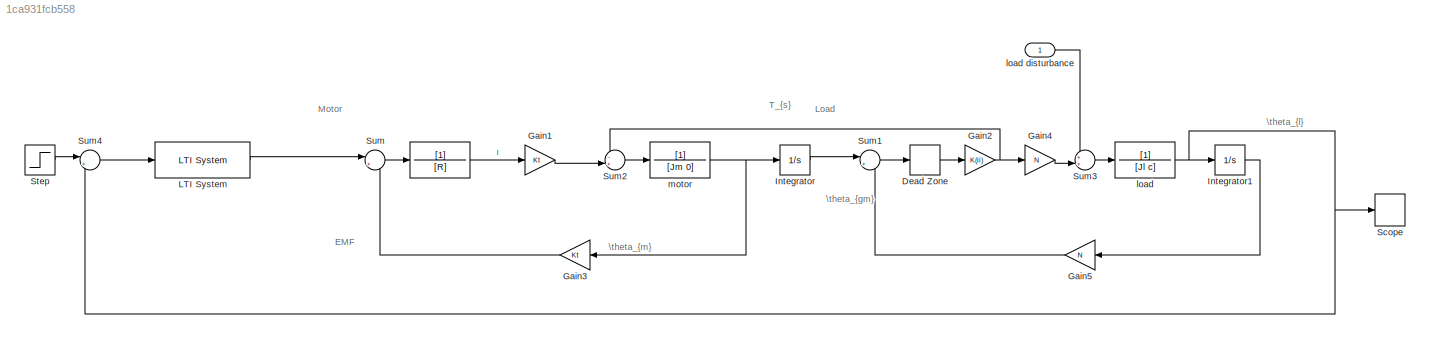
MODEL slx_1ca931fcb558
KIND model
CONFIG AbsTol = 1e-8
CONFIG FixedStep = auto
CONFIG MaxStep = auto
CONFIG MinStep = auto
CONFIG RelTol = 1e-8
CONFIG SampleTimeConstraint = Unconstrained
CONFIG Solver = ode45
CONFIG SolverMode = Auto
CONFIG SolverName = ode45
CONFIG StartTime = 0.0
CONFIG StopTime = 35
BLOCK [TransferFcn]  
  Denominator = [R]
BLOCK [TransferFcn]  load
  Denominator = [Jl c]
BLOCK [TransferFcn]  motor
  Denominator = [Jm 0]
BLOCK [DeadZone] Dead Zone
  LowerValue = -d/2
  UpperValue = d/2
BLOCK [Gain] Gain1
  Gain = Kt
  OutDataTypeStr = Inherit: Inherit via internal rule
  ParamDataTypeStr = Inherit: Inherit via internal rule
  SaturateOnIntegerOverflow = off
BLOCK [Gain] Gain2
  Gain = K(ii)
  OutDataTypeStr = Inherit: Inherit via internal rule
  ParamDataTypeStr = Inherit: Inherit via internal rule
  SaturateOnIntegerOverflow = off
BLOCK [Gain] Gain3
  Gain = Kt
  OutDataTypeStr = Inherit: Inherit via internal rule
  ParamDataTypeStr = Inherit: Inherit via internal rule
  SaturateOnIntegerOverflow = off
BLOCK [Gain] Gain4
  Gain = N
  OutDataTypeStr = Inherit: Inherit via internal rule
  ParamDataTypeStr = Inherit: Inherit via internal rule
  SaturateOnIntegerOverflow = off
BLOCK [Gain] Gain5
  Gain = N
  OutDataTypeStr = Inherit: Inherit via internal rule
  ParamDataTypeStr = Inherit: Inherit via internal rule
  SaturateOnIntegerOverflow = off
BLOCK [Integrator] Integrator
  Ports = [1, 1]
BLOCK [Integrator] Integrator1
  Ports = [1, 1]
BLOCK [Reference] LTI System  REF=cstblocks/LTI System
  IC = []
  Ports = [1, 1]
  SourceBlock = cstblocks/LTI System
  SourceType = LTI Block
  sys = C
BLOCK [TimeScope] Scope
  NumInputPorts = 1
  Ports = [1]
  ScopeSpecificationString = Simulink.scopes.TimeScopeBlockCfg('CurrentConfiguration', extmgr.ConfigurationSet(extmgr.Configuration('Core','General UI',true),extmgr.Configuration('Core','Source UI',true),extmgr.Configuration('Sources','WiredSimulink',true,'DataLogging',true,'DataLoggingVariableName','Output','DataLoggingDecimation','1','DataLoggingDecimateData',true,'DataLoggingSaveFormat','StructureWithTime'),extmgr.Configur...<+1632ch>
BLOCK [Step] Step
  After = pi/2
  SampleTime = 0
  Time = 0
BLOCK [Sum] Sum
  IconShape = round
  InputSameDT = off
  Inputs = |+-
  OutDataTypeStr = Inherit: Inherit via internal rule
  Ports = [2, 1]
  SaturateOnIntegerOverflow = off
BLOCK [Sum] Sum1
  IconShape = round
  InputSameDT = off
  Inputs = |+-
  OutDataTypeStr = Inherit: Inherit via internal rule
  Ports = [2, 1]
  SaturateOnIntegerOverflow = off
BLOCK [Sum] Sum2
  IconShape = round
  InputSameDT = off
  Inputs = -+|
  OutDataTypeStr = Inherit: Inherit via internal rule
  Ports = [2, 1]
  SaturateOnIntegerOverflow = off
BLOCK [Sum] Sum3
  IconShape = round
  InputSameDT = off
  Inputs = ++|
  OutDataTypeStr = Inherit: Inherit via internal rule
  Ports = [2, 1]
  SaturateOnIntegerOverflow = off
BLOCK [Sum] Sum4
  IconShape = round
  InputSameDT = off
  Inputs = |+-
  OutDataTypeStr = Inherit: Inherit via internal rule
  Ports = [2, 1]
  SaturateOnIntegerOverflow = off
BLOCK [Inport] load disturbance
  IconDisplay = Port number
ANNOTATION (root): EMF
ANNOTATION (root): Load
ANNOTATION (root): Motor
ANNOTATION (root): T_{s}
ANNOTATION (root): \theta_{gm}
ANNOTATION (root): \theta_{l}
ANNOTATION (root): \theta_{m}
LINE  :1 -> Gain1:1
NET  load:1 -> Integrator1:1, Scope:1, Sum4:2
NET  motor:1 -> Gain3:1, Integrator:1
LINE Dead Zone:1 -> Gain2:1
LINE Gain1:1 -> Sum2:2
NET Gain2:1 -> Gain4:1, Sum2:1
LINE Gain3:1 -> Sum:2
LINE Gain4:1 -> Sum3:2
LINE Gain5:1 -> Sum1:2
LINE Integrator1:1 -> Gain5:1
LINE Integrator:1 -> Sum1:1
LINE LTI System:1 -> Sum:1
LINE Step:1 -> Sum4:1
LINE Sum1:1 -> Dead Zone:1
LINE Sum2:1 ->  motor:1
LINE Sum3:1 ->  load:1
LINE Sum4:1 -> LTI System:1
LINE Sum:1 ->  :1
LINE load disturbance:1 -> Sum3:1
note: NET lines group one-source signal fan-out (src -> all destinations, sorted); 1:1 wires keep LINE
